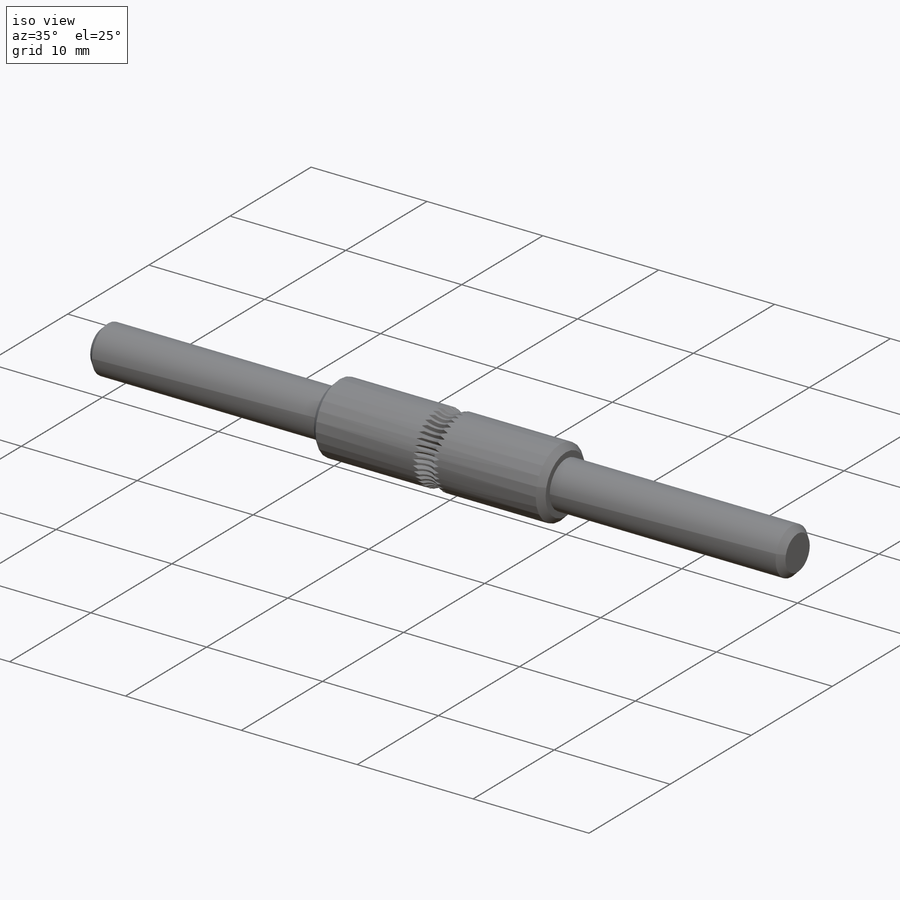
[diagram: iso view]
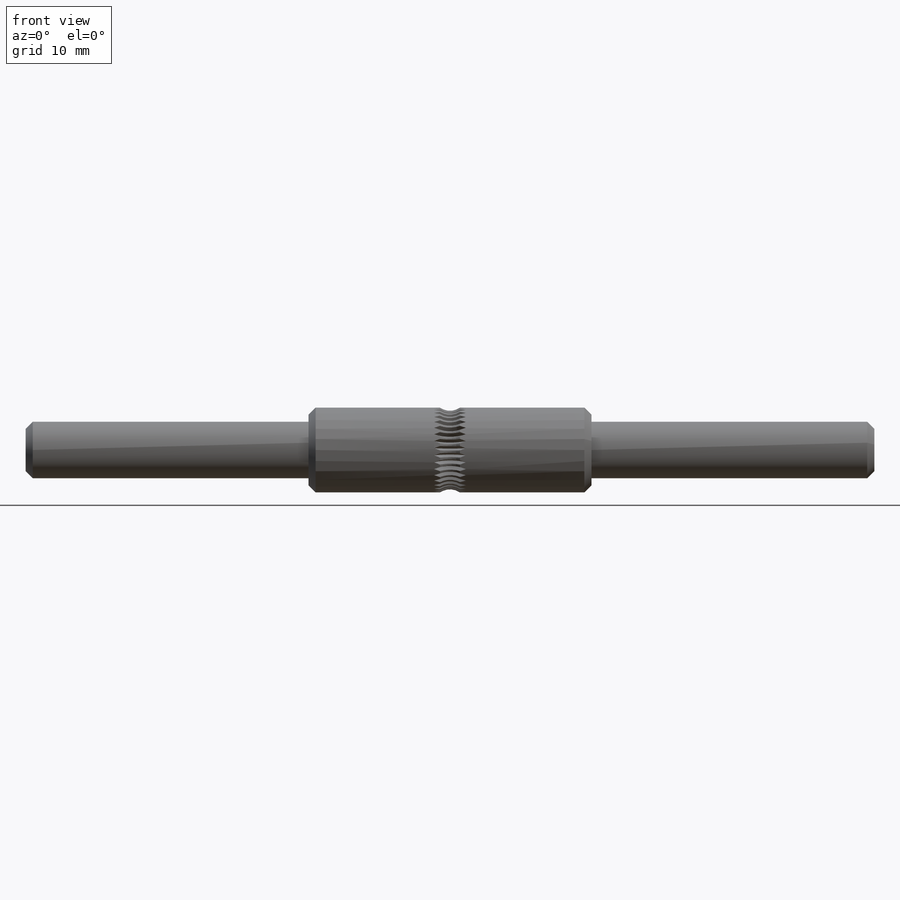
[diagram: front view]
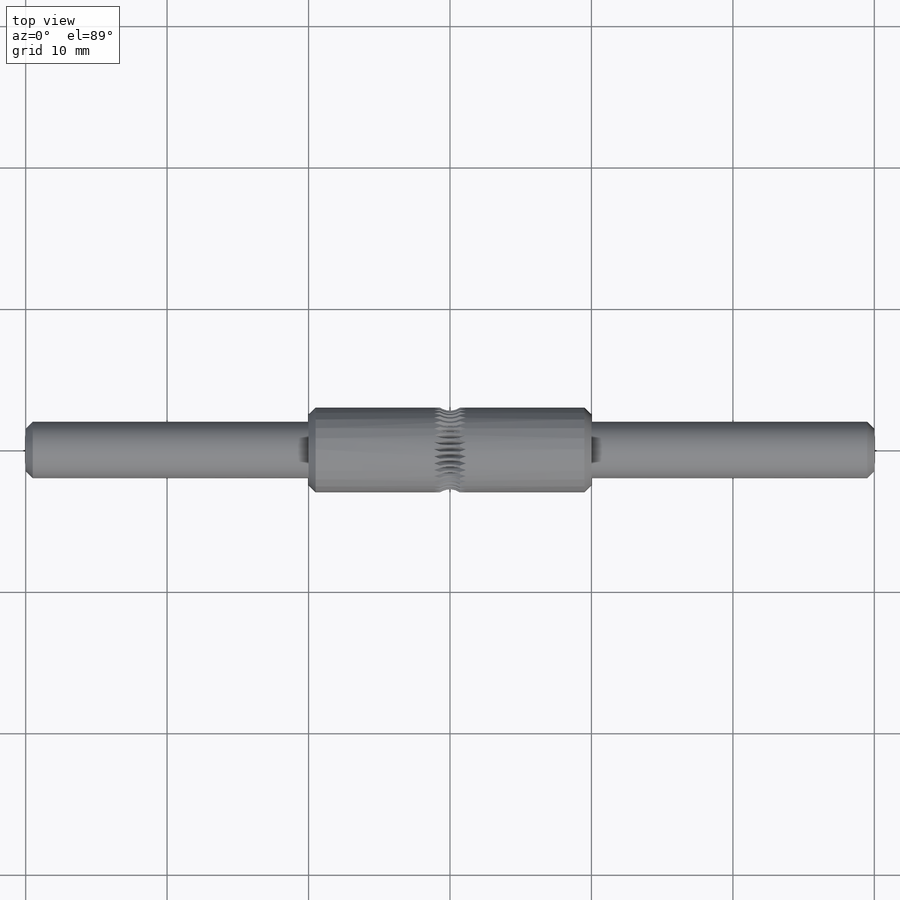
[diagram: top view]
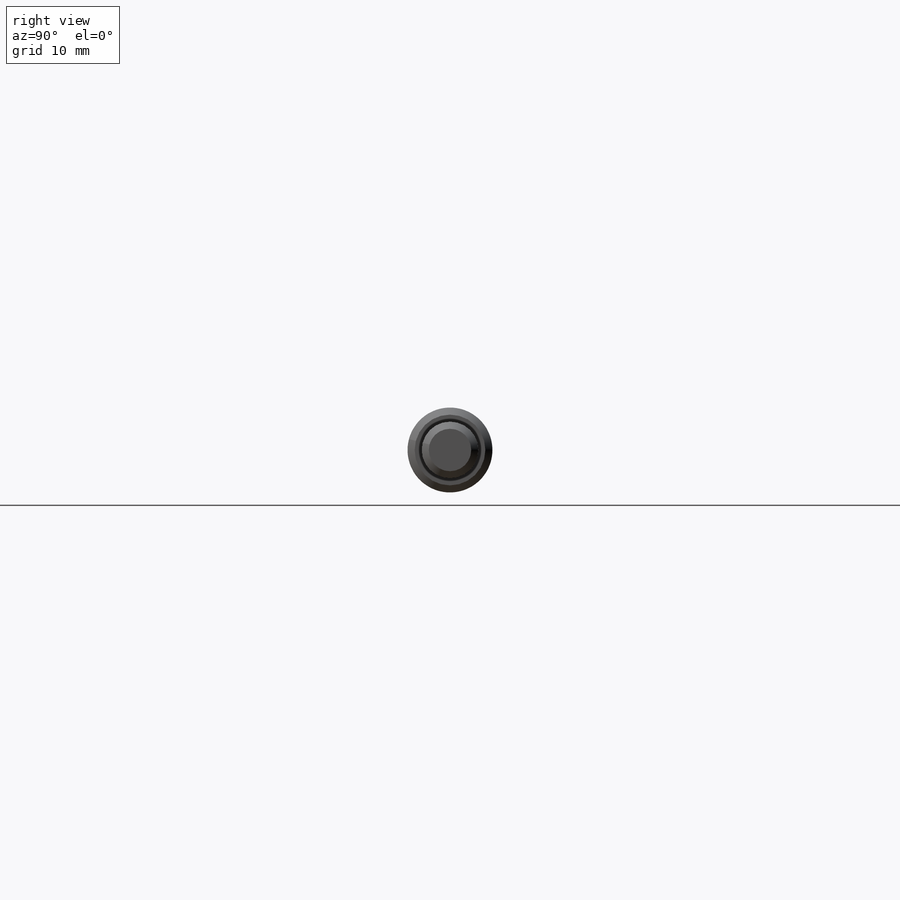
[diagram: right view]
SOLIDWORKS PART (.sldprt)
format: sldprt  version: not decoded by parser v0  size: 441,344 bytes
history: native  units: mm
features: sketch x3, cut_revolve x2, material x1, revolve x1, chamfer x1, pattern_circular x1 (+16 scaffold rows collapsed)
feature tree (25):
  scaffold x16  (default folders/planes/origin — collapsed)
  material  "Plain Carbon Steel"
  sketch  "Sketch1"  dims[D1=6.0mm D2=20.0mm D3=20.0mm D4=20.0mm D5=4.0mm]
  revolve  "Revolve1"  Angle=360deg
  chamfer  "Chamfer1"  Distance=0.5mm Angle=45deg
  sketch  "Sketch2"  dims[c1.D5=5.0mm c1.D1=~5.422972mm c2.D1=60.0deg c2.D2=3.0mm c2.D3=2.459mm c2.D4=1.0mm]
  cut_revolve  "Cut-Revolve1"  Angle=360deg
  pattern_circular  "CirPattern1"  Count=37 Angle=360deg
  sketch  "Sketch3"  dims[D1=1.5mm D2=16.0mm]
  cut_revolve  "Cut-Revolve2"  Angle=360deg
decode coverage: 8 of 8 modeling features carry decoded parameters
note: ~ marks probable driven/reference dimensions
note: suppression state not decoded; provenance and decode notes live in map.json
